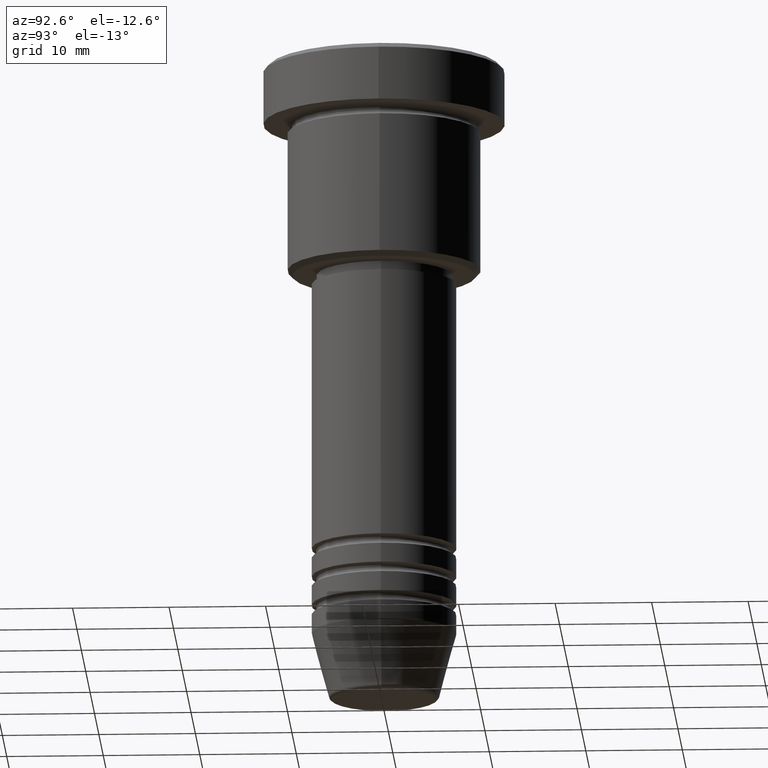
[diagram: clean part render]
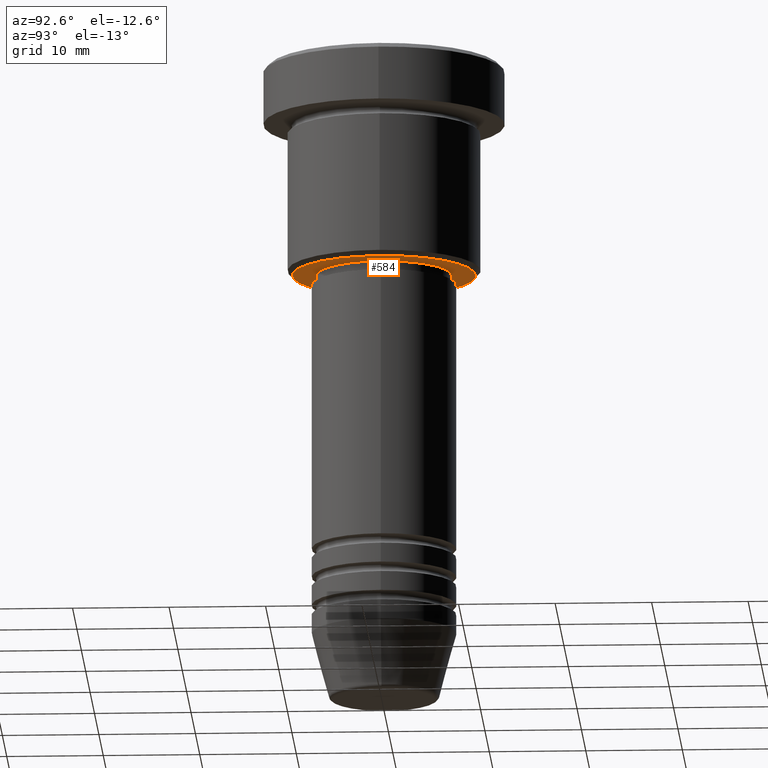
[diagram: same view with one face highlighted and labeled with its STEP entity id]
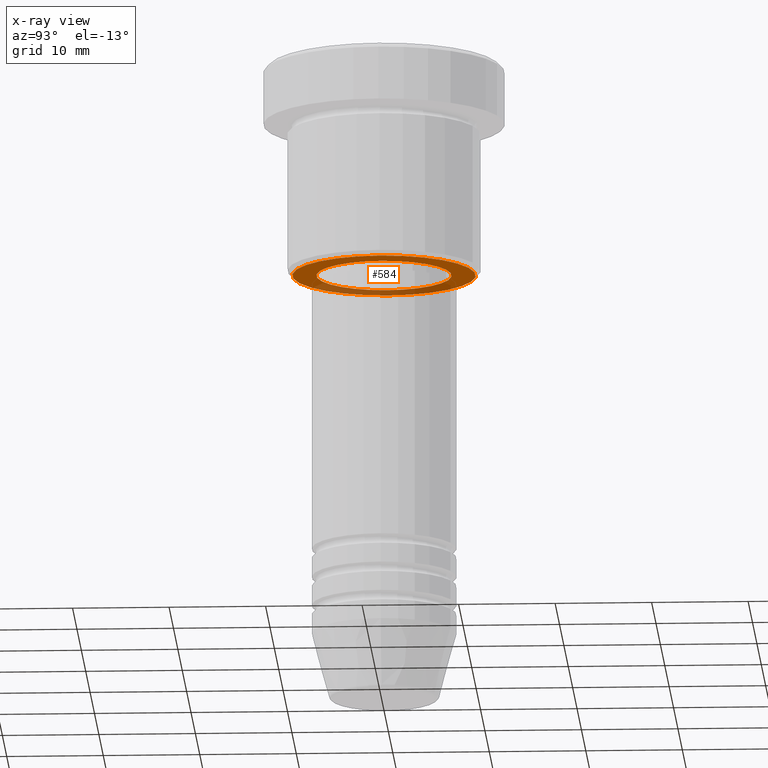
[diagram: x-ray of the same camera — body ghosted, the highlighted face saturated]
A machine part, auxiliary view. The second image highlights one B-rep face of the part: STEP entity #584.
The next image is the same camera in x-ray: the body ghosted, the highlighted face saturated — about 31% of this face is hidden behind the body in this view.
In plain terms, the highlighted planar face has unit normal (0, 0, -1).
Its self-contained STEP definition (entity closure, byte-faithful):
#26 = DIRECTION ( 'NONE',  ( -1.000000000000000000, 0.000000000000000000, 0.000000000000000000 ) ) ;
#73 = DIRECTION ( 'NONE',  ( -0.000000000000000000, -0.000000000000000000, 1.000000000000000000 ) ) ;
#74 = FACE_BOUND ( 'NONE', #512, .T. ) ;
#89 = EDGE_CURVE ( 'NONE', #485, #888, #168, .T. ) ;
#99 = ORIENTED_EDGE ( 'NONE', *, *, #89, .T. ) ;
#168 = CIRCLE ( 'NONE', #803, 6.999999999999999112 ) ;
#174 = CARTESIAN_POINT ( 'NONE',  ( -9.499999999999987566, 1.194030629168668681E-15, -22.00000000000000000 ) ) ;
#230 = DIRECTION ( 'NONE',  ( 1.000000000000000000, 0.000000000000000000, 0.000000000000000000 ) ) ;
#231 = ORIENTED_EDGE ( 'NONE', *, *, #854, .T. ) ;
#243 = EDGE_LOOP ( 'NONE', ( #332, #979 ) ) ;
#283 = VERTEX_POINT ( 'NONE', #494 ) ;
#298 = AXIS2_PLACEMENT_3D ( 'NONE', #877, #594, #26 ) ;
#322 = CARTESIAN_POINT ( 'NONE',  ( 0.000000000000000000, 0.000000000000000000, -22.00000000000000000 ) ) ;
#332 = ORIENTED_EDGE ( 'NONE', *, *, #863, .T. ) ;
#355 = AXIS2_PLACEMENT_3D ( 'NONE', #701, #685, #1058 ) ;
#362 = DIRECTION ( 'NONE',  ( -1.000000000000000000, 0.000000000000000000, -0.000000000000000000 ) ) ;
#454 = CIRCLE ( 'NONE', #355, 9.499999999999987566 ) ;
#456 = CARTESIAN_POINT ( 'NONE',  ( 0.000000000000000000, 10.00000000000000000, -22.00000000000000000 ) ) ;
#485 = VERTEX_POINT ( 'NONE', #987 ) ;
#494 = CARTESIAN_POINT ( 'NONE',  ( 9.499999999999987566, 0.000000000000000000, -22.00000000000000000 ) ) ;
#512 = EDGE_LOOP ( 'NONE', ( #99, #231 ) ) ;
#540 = FACE_OUTER_BOUND ( 'NONE', #243, .T. ) ;
#542 = CARTESIAN_POINT ( 'NONE',  ( 0.000000000000000000, 0.000000000000000000, -22.00000000000000000 ) ) ;
#584 = ADVANCED_FACE ( 'NONE', ( #540, #74 ), #895, .T. ) ;
#594 = DIRECTION ( 'NONE',  ( 0.000000000000000000, 0.000000000000000000, -1.000000000000000000 ) ) ;
#627 = AXIS2_PLACEMENT_3D ( 'NONE', #456, #1171, #362 ) ;
#681 = DIRECTION ( 'NONE',  ( -0.000000000000000000, -0.000000000000000000, 1.000000000000000000 ) ) ;
#685 = DIRECTION ( 'NONE',  ( 0.000000000000000000, 0.000000000000000000, -1.000000000000000000 ) ) ;
#701 = CARTESIAN_POINT ( 'NONE',  ( 0.000000000000000000, 0.000000000000000000, -22.00000000000000000 ) ) ;
#803 = AXIS2_PLACEMENT_3D ( 'NONE', #542, #73, #996 ) ;
#854 = EDGE_CURVE ( 'NONE', #888, #485, #1130, .T. ) ;
#861 = EDGE_CURVE ( 'NONE', #1107, #283, #1166, .T. ) ;
#863 = EDGE_CURVE ( 'NONE', #283, #1107, #454, .T. ) ;
#877 = CARTESIAN_POINT ( 'NONE',  ( 0.000000000000000000, 0.000000000000000000, -22.00000000000000000 ) ) ;
#888 = VERTEX_POINT ( 'NONE', #968 ) ;
#895 = PLANE ( 'NONE',  #627 ) ;
#968 = CARTESIAN_POINT ( 'NONE',  ( -6.999999999999999112, 8.572527594031472204E-16, -22.00000000000000000 ) ) ;
#979 = ORIENTED_EDGE ( 'NONE', *, *, #861, .T. ) ;
#987 = CARTESIAN_POINT ( 'NONE',  ( 6.999999999999999112, 0.000000000000000000, -22.00000000000000000 ) ) ;
#996 = DIRECTION ( 'NONE',  ( 1.000000000000000000, 0.000000000000000000, 0.000000000000000000 ) ) ;
#1038 = AXIS2_PLACEMENT_3D ( 'NONE', #322, #681, #230 ) ;
#1058 = DIRECTION ( 'NONE',  ( -1.000000000000000000, 0.000000000000000000, 0.000000000000000000 ) ) ;
#1107 = VERTEX_POINT ( 'NONE', #174 ) ;
#1130 = CIRCLE ( 'NONE', #1038, 6.999999999999999112 ) ;
#1166 = CIRCLE ( 'NONE', #298, 9.499999999999987566 ) ;
#1171 = DIRECTION ( 'NONE',  ( 0.000000000000000000, 0.000000000000000000, -1.000000000000000000 ) ) ;